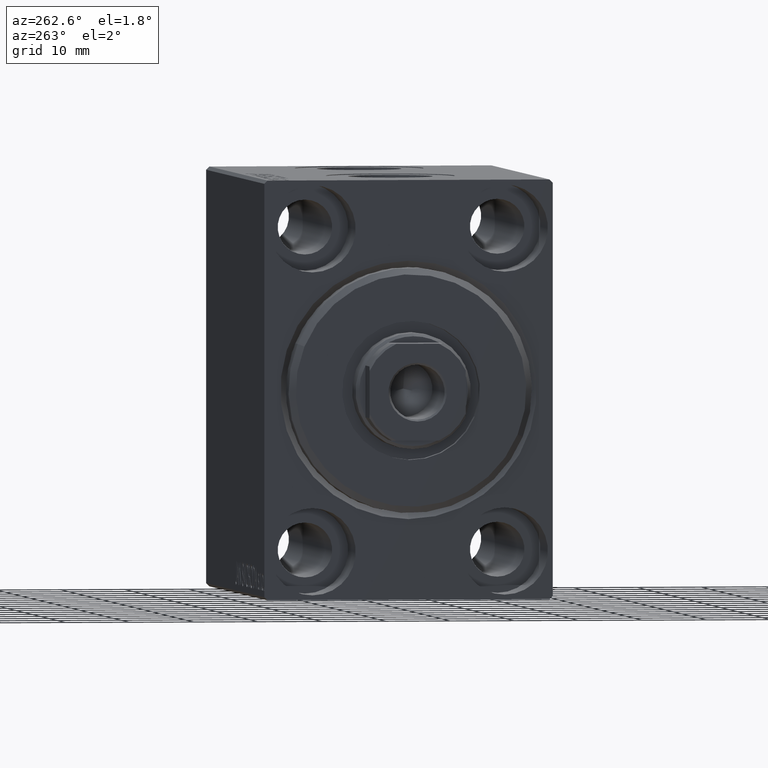
[diagram: clean part render]
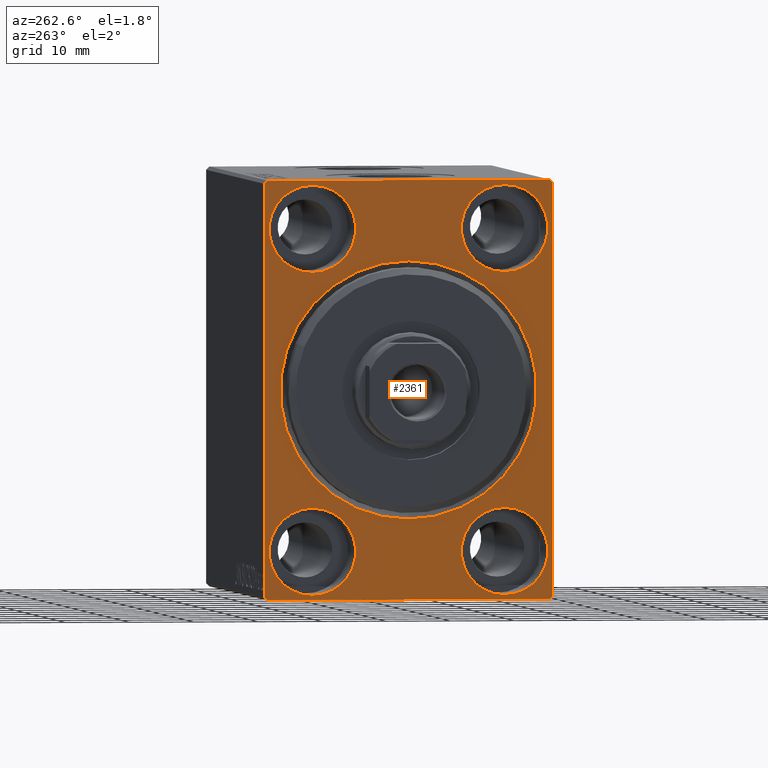
[diagram: same view with one face highlighted and labeled with its STEP entity id]
A machine part, auxiliary view. The second image highlights one B-rep face of the part: STEP entity #2361.
In plain terms, the highlighted planar face has unit normal (1, 0, 0).
Its self-contained STEP definition (entity closure, byte-faithful):
#7 = CARTESIAN_POINT ( 'NONE',  ( 0.000000000000000000, -14.99999999999999645, 31.75000000000000000 ) ) ;
#171 = CARTESIAN_POINT ( 'NONE',  ( 0.000000000000000000, 14.99999999999999645, -25.00000000000000000 ) ) ;
#514 = AXIS2_PLACEMENT_3D ( 'NONE', #28645, #39315, #11730 ) ;
#623 = CARTESIAN_POINT ( 'NONE',  ( 0.000000000000000000, 15.00000000000000355, 25.00000000000000000 ) ) ;
#972 = CARTESIAN_POINT ( 'NONE',  ( 0.000000000000000000, -15.00000000000000355, -31.75000000000000000 ) ) ;
#1477 = EDGE_CURVE ( 'NONE', #42445, #37990, #18952, .T. ) ;
#1803 = DIRECTION ( 'NONE',  ( -1.000000000000000000, 0.000000000000000000, 0.000000000000000000 ) ) ;
#1809 = CARTESIAN_POINT ( 'NONE',  ( 0.000000000000000000, -15.00000000000000355, -18.25000000000000355 ) ) ;
#2250 = CARTESIAN_POINT ( 'NONE',  ( 0.000000000000000000, 21.99999999999999289, 32.50000000000000000 ) ) ;
#2259 = DIRECTION ( 'NONE',  ( 0.000000000000000000, 0.000000000000000000, -1.000000000000000000 ) ) ;
#2361 = ADVANCED_FACE ( 'NONE', ( #8614, #15510, #38661, #22201, #29073, #12170 ), #22409, .F. ) ;
#2632 = AXIS2_PLACEMENT_3D ( 'NONE', #5378, #39215, #41910 ) ;
#2920 = VERTEX_POINT ( 'NONE', #32226 ) ;
#3131 = VERTEX_POINT ( 'NONE', #3906 ) ;
#3146 = CARTESIAN_POINT ( 'NONE',  ( 0.000000000000000000, -22.50000000000000711, 31.99999999999999289 ) ) ;
#3387 = EDGE_CURVE ( 'NONE', #25553, #5925, #33253, .T. ) ;
#3628 = DIRECTION ( 'NONE',  ( 0.000000000000000000, 0.000000000000000000, -1.000000000000000000 ) ) ;
#3906 = CARTESIAN_POINT ( 'NONE',  ( 0.000000000000000000, 15.00000000000000355, 31.75000000000000000 ) ) ;
#3971 = CARTESIAN_POINT ( 'NONE',  ( 0.000000000000000000, -22.00000000000002132, -32.50000000000000711 ) ) ;
#4058 = EDGE_LOOP ( 'NONE', ( #7967, #33401, #21674, #34045, #31007, #5207, #14012, #14097 ) ) ;
#4955 = EDGE_CURVE ( 'NONE', #17364, #19203, #36085, .T. ) ;
#5207 = ORIENTED_EDGE ( 'NONE', *, *, #15724, .T. ) ;
#5378 = CARTESIAN_POINT ( 'NONE',  ( 0.000000000000000000, -15.00000000000000355, -25.00000000000000000 ) ) ;
#5660 = LINE ( 'NONE', #15247, #38467 ) ;
#5925 = VERTEX_POINT ( 'NONE', #38695 ) ;
#6682 = VERTEX_POINT ( 'NONE', #7 ) ;
#6822 = DIRECTION ( 'NONE',  ( 0.000000000000000000, 0.000000000000000000, 1.000000000000000000 ) ) ;
#6944 = AXIS2_PLACEMENT_3D ( 'NONE', #7943, #21956, #38644 ) ;
#7134 = VERTEX_POINT ( 'NONE', #19500 ) ;
#7495 = DIRECTION ( 'NONE',  ( -1.000000000000000000, 0.000000000000000000, 0.000000000000000000 ) ) ;
#7517 = EDGE_CURVE ( 'NONE', #37990, #42445, #26212, .T. ) ;
#7601 = VECTOR ( 'NONE', #20340, 1000.000000000000000 ) ;
#7749 = EDGE_CURVE ( 'NONE', #3131, #7134, #35461, .T. ) ;
#7779 = CARTESIAN_POINT ( 'NONE',  ( 0.000000000000000000, -14.99999999999999645, 25.00000000000000000 ) ) ;
#7943 = CARTESIAN_POINT ( 'NONE',  ( 0.000000000000000000, -14.99999999999999645, 25.00000000000000000 ) ) ;
#7967 = ORIENTED_EDGE ( 'NONE', *, *, #14370, .F. ) ;
#7969 = DIRECTION ( 'NONE',  ( 0.000000000000000000, 0.000000000000000000, 1.000000000000000000 ) ) ;
#8010 = VECTOR ( 'NONE', #26981, 999.9999999999998863 ) ;
#8614 = FACE_BOUND ( 'NONE', #33812, .T. ) ;
#8879 = CARTESIAN_POINT ( 'NONE',  ( 0.000000000000000000, 2.449293598294706907E-15, -20.00000000000000355 ) ) ;
#9806 = EDGE_LOOP ( 'NONE', ( #17254, #35324 ) ) ;
#10316 = CARTESIAN_POINT ( 'NONE',  ( 0.000000000000000000, 22.49999999999999289, 31.99999999999999289 ) ) ;
#11204 = ORIENTED_EDGE ( 'NONE', *, *, #24948, .F. ) ;
#11290 = EDGE_LOOP ( 'NONE', ( #39154, #42072 ) ) ;
#11730 = DIRECTION ( 'NONE',  ( 0.000000000000000000, 0.000000000000000000, -1.000000000000000000 ) ) ;
#12121 = EDGE_CURVE ( 'NONE', #31776, #6682, #29854, .T. ) ;
#12170 = FACE_OUTER_BOUND ( 'NONE', #4058, .T. ) ;
#12492 = DIRECTION ( 'NONE',  ( 0.000000000000000000, 0.000000000000000000, 1.000000000000000000 ) ) ;
#12579 = CIRCLE ( 'NONE', #2632, 6.749999999999999112 ) ;
#12829 = CIRCLE ( 'NONE', #29195, 20.00000000000000355 ) ;
#12920 = EDGE_CURVE ( 'NONE', #31834, #26387, #12829, .T. ) ;
#13190 = DIRECTION ( 'NONE',  ( 0.000000000000000000, 0.000000000000000000, 1.000000000000000000 ) ) ;
#14012 = ORIENTED_EDGE ( 'NONE', *, *, #36274, .F. ) ;
#14097 = ORIENTED_EDGE ( 'NONE', *, *, #15530, .T. ) ;
#14344 = LINE ( 'NONE', #41703, #38791 ) ;
#14370 = EDGE_CURVE ( 'NONE', #28964, #2920, #38783, .T. ) ;
#14525 = EDGE_CURVE ( 'NONE', #28964, #5925, #40296, .T. ) ;
#14850 = AXIS2_PLACEMENT_3D ( 'NONE', #21864, #39421, #12492 ) ;
#15064 = VERTEX_POINT ( 'NONE', #16786 ) ;
#15247 = CARTESIAN_POINT ( 'NONE',  ( 0.000000000000000000, 22.50000000000000000, -32.50000000000000711 ) ) ;
#15497 = EDGE_LOOP ( 'NONE', ( #18594, #26657 ) ) ;
#15510 = FACE_BOUND ( 'NONE', #11290, .T. ) ;
#15530 = EDGE_CURVE ( 'NONE', #36815, #2920, #21353, .T. ) ;
#15724 = EDGE_CURVE ( 'NONE', #26356, #15064, #14344, .T. ) ;
#15870 = CARTESIAN_POINT ( 'NONE',  ( 0.000000000000000000, 14.99999999999999645, -31.75000000000000000 ) ) ;
#16786 = CARTESIAN_POINT ( 'NONE',  ( 0.000000000000000000, 22.00000000000001421, -32.50000000000000711 ) ) ;
#17155 = EDGE_LOOP ( 'NONE', ( #11204, #35900 ) ) ;
#17202 = CARTESIAN_POINT ( 'NONE',  ( 0.000000000000000000, 21.99999999999999289, 32.50000000000000000 ) ) ;
#17254 = ORIENTED_EDGE ( 'NONE', *, *, #7749, .F. ) ;
#17364 = VERTEX_POINT ( 'NONE', #1809 ) ;
#17560 = DIRECTION ( 'NONE',  ( -0.000000000000000000, -0.7071067811865378028, 0.7071067811865573427 ) ) ;
#17566 = CIRCLE ( 'NONE', #36738, 20.00000000000000355 ) ;
#18594 = ORIENTED_EDGE ( 'NONE', *, *, #4955, .F. ) ;
#18623 = AXIS2_PLACEMENT_3D ( 'NONE', #623, #24214, #7969 ) ;
#18935 = CARTESIAN_POINT ( 'NONE',  ( 0.000000000000000000, -15.00000000000000355, -25.00000000000000000 ) ) ;
#18952 = CIRCLE ( 'NONE', #39547, 6.749999999999999112 ) ;
#19203 = VERTEX_POINT ( 'NONE', #972 ) ;
#19414 = CARTESIAN_POINT ( 'NONE',  ( 0.000000000000000000, -22.50000000000000711, 32.49999999999999289 ) ) ;
#19500 = CARTESIAN_POINT ( 'NONE',  ( 0.000000000000000000, 15.00000000000000355, 18.25000000000000355 ) ) ;
#19667 = CARTESIAN_POINT ( 'NONE',  ( 0.000000000000000000, 0.000000000000000000, 20.00000000000000355 ) ) ;
#19821 = DIRECTION ( 'NONE',  ( 1.000000000000000000, 0.000000000000000000, 0.000000000000000000 ) ) ;
#20340 = DIRECTION ( 'NONE',  ( 0.000000000000000000, -1.000000000000000000, -1.541976423090495387E-16 ) ) ;
#20909 = DIRECTION ( 'NONE',  ( 0.000000000000000000, 0.000000000000000000, 1.000000000000000000 ) ) ;
#21252 = DIRECTION ( 'NONE',  ( 0.000000000000000000, -0.7071067811865376918, -0.7071067811865573427 ) ) ;
#21353 = LINE ( 'NONE', #3971, #40896 ) ;
#21674 = ORIENTED_EDGE ( 'NONE', *, *, #3387, .F. ) ;
#21864 = CARTESIAN_POINT ( 'NONE',  ( 0.000000000000000000, 15.00000000000000355, 25.00000000000000000 ) ) ;
#21956 = DIRECTION ( 'NONE',  ( -1.000000000000000000, 0.000000000000000000, 0.000000000000000000 ) ) ;
#22201 = FACE_BOUND ( 'NONE', #9806, .T. ) ;
#22409 = PLANE ( 'NONE',  #514 ) ;
#22783 = VECTOR ( 'NONE', #35834, 1000.000000000000000 ) ;
#23160 = CARTESIAN_POINT ( 'NONE',  ( 0.000000000000000000, 0.000000000000000000, 0.000000000000000000 ) ) ;
#23261 = EDGE_CURVE ( 'NONE', #26387, #31834, #17566, .T. ) ;
#23398 = EDGE_CURVE ( 'NONE', #19203, #17364, #12579, .T. ) ;
#24214 = DIRECTION ( 'NONE',  ( -1.000000000000000000, 0.000000000000000000, 0.000000000000000000 ) ) ;
#24256 = CARTESIAN_POINT ( 'NONE',  ( 0.000000000000000000, 22.50000000000000000, -32.00000000000002132 ) ) ;
#24948 = EDGE_CURVE ( 'NONE', #6682, #31776, #41033, .T. ) ;
#25420 = ORIENTED_EDGE ( 'NONE', *, *, #12920, .T. ) ;
#25553 = VERTEX_POINT ( 'NONE', #2250 ) ;
#25831 = CARTESIAN_POINT ( 'NONE',  ( 0.000000000000000000, -22.50000000000000711, -32.50000000000000711 ) ) ;
#25908 = CARTESIAN_POINT ( 'NONE',  ( 0.000000000000000000, -14.99999999999999645, 18.25000000000000355 ) ) ;
#26212 = CIRCLE ( 'NONE', #39708, 6.749999999999999112 ) ;
#26356 = VERTEX_POINT ( 'NONE', #24256 ) ;
#26384 = CARTESIAN_POINT ( 'NONE',  ( 0.000000000000000000, -22.00000000000002132, -32.50000000000000711 ) ) ;
#26387 = VERTEX_POINT ( 'NONE', #8879 ) ;
#26657 = ORIENTED_EDGE ( 'NONE', *, *, #23398, .F. ) ;
#26981 = DIRECTION ( 'NONE',  ( -0.000000000000000000, 0.7071067811865425767, -0.7071067811865525687 ) ) ;
#27850 = CIRCLE ( 'NONE', #18623, 6.749999999999999112 ) ;
#28018 = DIRECTION ( 'NONE',  ( -1.000000000000000000, 0.000000000000000000, 0.000000000000000000 ) ) ;
#28645 = CARTESIAN_POINT ( 'NONE',  ( 0.000000000000000000, 0.000000000000000000, 0.000000000000000000 ) ) ;
#28814 = VECTOR ( 'NONE', #29855, 1000.000000000000114 ) ;
#28964 = VERTEX_POINT ( 'NONE', #32500 ) ;
#29073 = FACE_BOUND ( 'NONE', #15497, .T. ) ;
#29195 = AXIS2_PLACEMENT_3D ( 'NONE', #23160, #19821, #2259 ) ;
#29702 = AXIS2_PLACEMENT_3D ( 'NONE', #18935, #1803, #32510 ) ;
#29854 = CIRCLE ( 'NONE', #39801, 6.749999999999999112 ) ;
#29855 = DIRECTION ( 'NONE',  ( -0.000000000000000000, 0.7071067811865474617, 0.7071067811865474617 ) ) ;
#30991 = DIRECTION ( 'NONE',  ( 1.000000000000000000, 0.000000000000000000, 0.000000000000000000 ) ) ;
#31007 = ORIENTED_EDGE ( 'NONE', *, *, #40258, .F. ) ;
#31776 = VERTEX_POINT ( 'NONE', #25908 ) ;
#31834 = VERTEX_POINT ( 'NONE', #19667 ) ;
#32126 = DIRECTION ( 'NONE',  ( 0.000000000000000000, 0.000000000000000000, -1.000000000000000000 ) ) ;
#32226 = CARTESIAN_POINT ( 'NONE',  ( 0.000000000000000000, -22.50000000000000711, -32.00000000000000711 ) ) ;
#32500 = CARTESIAN_POINT ( 'NONE',  ( 0.000000000000000000, -22.50000000000000711, 31.99999999999999289 ) ) ;
#32510 = DIRECTION ( 'NONE',  ( 0.000000000000000000, 0.000000000000000000, 1.000000000000000000 ) ) ;
#33253 = LINE ( 'NONE', #37244, #7601 ) ;
#33401 = ORIENTED_EDGE ( 'NONE', *, *, #14525, .T. ) ;
#33451 = CARTESIAN_POINT ( 'NONE',  ( 0.000000000000000000, 14.99999999999999645, -25.00000000000000000 ) ) ;
#33812 = EDGE_LOOP ( 'NONE', ( #25420, #40891 ) ) ;
#34045 = ORIENTED_EDGE ( 'NONE', *, *, #43966, .T. ) ;
#34100 = DIRECTION ( 'NONE',  ( -1.000000000000000000, 0.000000000000000000, 0.000000000000000000 ) ) ;
#34541 = CARTESIAN_POINT ( 'NONE',  ( 0.000000000000000000, 0.000000000000000000, 0.000000000000000000 ) ) ;
#34974 = CARTESIAN_POINT ( 'NONE',  ( 0.000000000000000000, 14.99999999999999645, -18.25000000000000355 ) ) ;
#35324 = ORIENTED_EDGE ( 'NONE', *, *, #42709, .F. ) ;
#35461 = CIRCLE ( 'NONE', #14850, 6.749999999999999112 ) ;
#35834 = DIRECTION ( 'NONE',  ( 0.000000000000000000, 1.000000000000000000, 0.000000000000000000 ) ) ;
#35866 = VERTEX_POINT ( 'NONE', #10316 ) ;
#35900 = ORIENTED_EDGE ( 'NONE', *, *, #12121, .F. ) ;
#36085 = CIRCLE ( 'NONE', #29702, 6.749999999999999112 ) ;
#36274 = EDGE_CURVE ( 'NONE', #36815, #15064, #43386, .T. ) ;
#36738 = AXIS2_PLACEMENT_3D ( 'NONE', #34541, #30991, #3628 ) ;
#36815 = VERTEX_POINT ( 'NONE', #26384 ) ;
#37244 = CARTESIAN_POINT ( 'NONE',  ( 0.000000000000000000, 22.49999999999999289, 32.50000000000000000 ) ) ;
#37990 = VERTEX_POINT ( 'NONE', #34974 ) ;
#38467 = VECTOR ( 'NONE', #39051, 1000.000000000000000 ) ;
#38644 = DIRECTION ( 'NONE',  ( 0.000000000000000000, 0.000000000000000000, 1.000000000000000000 ) ) ;
#38661 = FACE_BOUND ( 'NONE', #17155, .T. ) ;
#38695 = CARTESIAN_POINT ( 'NONE',  ( 0.000000000000000000, -21.99999999999999289, 32.49999999999999289 ) ) ;
#38760 = VECTOR ( 'NONE', #32126, 1000.000000000000000 ) ;
#38783 = LINE ( 'NONE', #19414, #38760 ) ;
#38791 = VECTOR ( 'NONE', #21252, 1000.000000000000114 ) ;
#39051 = DIRECTION ( 'NONE',  ( 0.000000000000000000, -1.067522139062650425E-16, 1.000000000000000000 ) ) ;
#39154 = ORIENTED_EDGE ( 'NONE', *, *, #7517, .F. ) ;
#39215 = DIRECTION ( 'NONE',  ( -1.000000000000000000, 0.000000000000000000, 0.000000000000000000 ) ) ;
#39315 = DIRECTION ( 'NONE',  ( 1.000000000000000000, 0.000000000000000000, 0.000000000000000000 ) ) ;
#39421 = DIRECTION ( 'NONE',  ( -1.000000000000000000, 0.000000000000000000, 0.000000000000000000 ) ) ;
#39547 = AXIS2_PLACEMENT_3D ( 'NONE', #171, #7495, #6822 ) ;
#39708 = AXIS2_PLACEMENT_3D ( 'NONE', #33451, #34100, #13190 ) ;
#39801 = AXIS2_PLACEMENT_3D ( 'NONE', #7779, #28018, #20909 ) ;
#40258 = EDGE_CURVE ( 'NONE', #26356, #35866, #5660, .T. ) ;
#40296 = LINE ( 'NONE', #3146, #28814 ) ;
#40891 = ORIENTED_EDGE ( 'NONE', *, *, #23261, .T. ) ;
#40896 = VECTOR ( 'NONE', #17560, 1000.000000000000000 ) ;
#40991 = LINE ( 'NONE', #17202, #8010 ) ;
#41033 = CIRCLE ( 'NONE', #6944, 6.749999999999999112 ) ;
#41703 = CARTESIAN_POINT ( 'NONE',  ( 0.000000000000000000, 22.50000000000000000, -32.00000000000002132 ) ) ;
#41910 = DIRECTION ( 'NONE',  ( 0.000000000000000000, 0.000000000000000000, 1.000000000000000000 ) ) ;
#42072 = ORIENTED_EDGE ( 'NONE', *, *, #1477, .F. ) ;
#42445 = VERTEX_POINT ( 'NONE', #15870 ) ;
#42709 = EDGE_CURVE ( 'NONE', #7134, #3131, #27850, .T. ) ;
#43386 = LINE ( 'NONE', #25831, #22783 ) ;
#43966 = EDGE_CURVE ( 'NONE', #25553, #35866, #40991, .T. ) ;